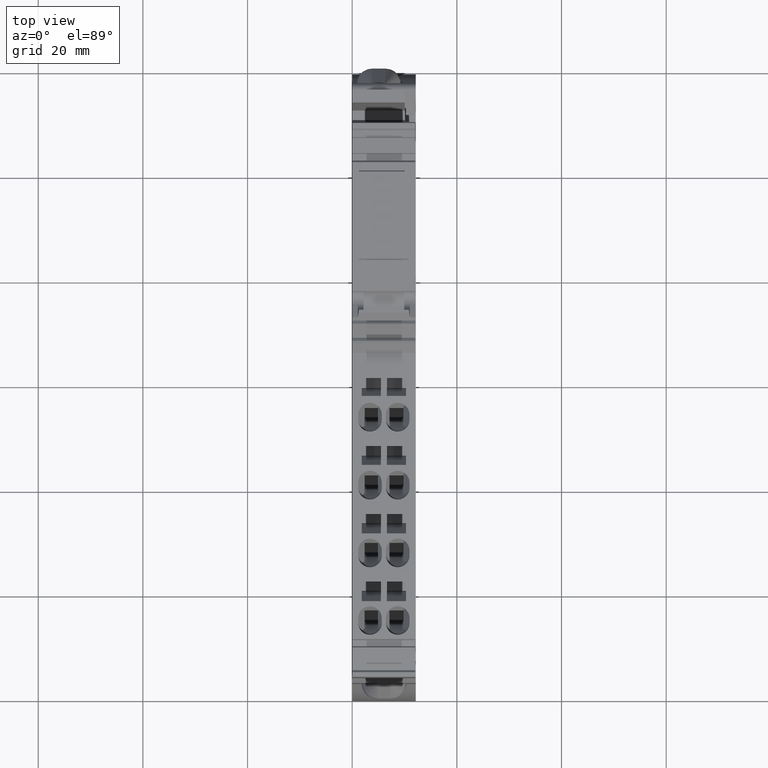
[diagram: clean part render]
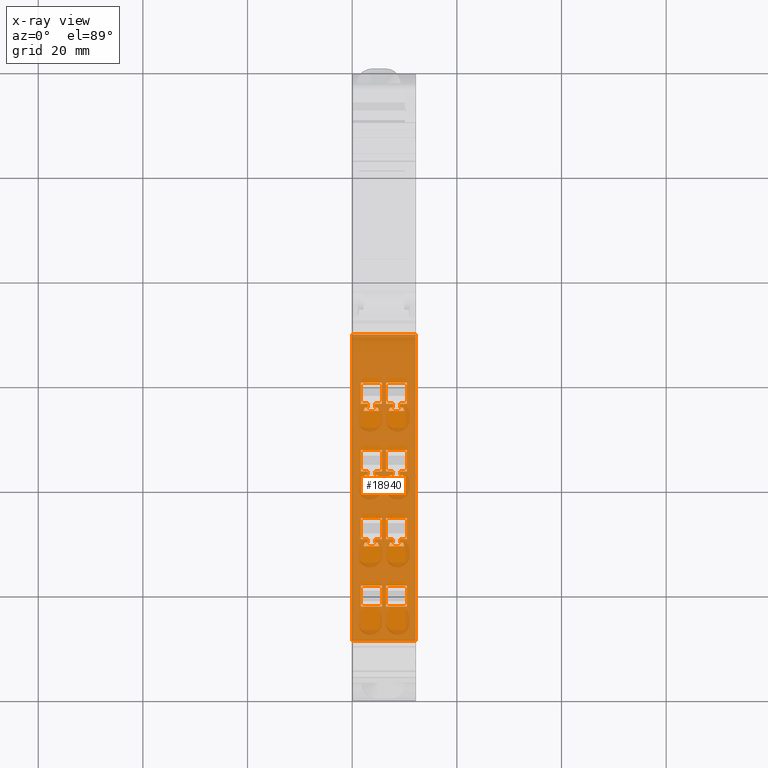
[diagram: x-ray — body ghosted, one internal face saturated and labeled with its STEP entity id]
A machine part, top view, then the same camera in x-ray: the body is ghosted and one INTERNAL B-rep face — a face not visible from any outside direction — is saturated and labeled: STEP entity #18940.
In plain terms, the highlighted planar face has unit normal (0, 0.1305, -0.9914).
Its self-contained STEP definition (entity closure, byte-faithful):
#120=CARTESIAN_POINT('',(245.956559916687,-18.9076132978659,36.45));
#130=VERTEX_POINT('',#120);
#5600=CARTESIAN_POINT('',(187.478620208858,-26.6063801141666,36.45));
#5610=VERTEX_POINT('',#5600);
#5640=CARTESIAN_POINT('',(217.456642799386,-22.6596985673923,36.45));
#5650=DIRECTION('',(0.991444861373811,0.13052619222005,
-1.55470229805303E-45));
#5660=VECTOR('',#5650,1.);
#5670=LINE('',#5640,#5660);
#5680=EDGE_CURVE('',#5610,#130,#5670,.T.);
#8220=CARTESIAN_POINT('',(245.956559916687,-18.9076132978659,24.3));
#8230=VERTEX_POINT('',#8220);
#8260=CARTESIAN_POINT('',(217.456642799386,-22.6596985673923,24.3));
#8270=DIRECTION('',(0.991444861373811,0.13052619222005,
-1.55470229805303E-45));
#8280=VECTOR('',#8270,1.);
#8290=LINE('',#8260,#8280);
#8300=CARTESIAN_POINT('',(187.478620208858,-26.6063801141666,24.3));
#8310=VERTEX_POINT('',#8300);
#8320=EDGE_CURVE('',#8310,#8230,#8290,.T.);
#12170=CARTESIAN_POINT('',(245.956559916687,-18.9076132978659,24.3));
#12180=DIRECTION('',(0.13052619222005,-0.991444861373811,
1.18091363744997E-44));
#12190=DIRECTION('',(0.991444861373811,0.13052619222005,
-1.55470229805303E-45));
#12200=AXIS2_PLACEMENT_3D('',#12170,#12180,#12190);
#12210=PLANE('',#12200);
#12220=CARTESIAN_POINT('',(217.456642799386,-22.6596985673923,
34.6032718878702));
#12230=DIRECTION('',(0.937065302366578,0.123366987459046,
-0.32663313595824));
#12240=VECTOR('',#12230,1.);
#12250=LINE('',#12220,#12240);
#12260=CARTESIAN_POINT('',(218.49881961482,-22.5224933867127,34.24));
#12270=VERTEX_POINT('',#12260);
#12280=CARTESIAN_POINT('',(219.173002120554,-22.4337355760031,34.005));
#12290=VERTEX_POINT('',#12280);
#12300=EDGE_CURVE('',#12270,#12290,#12250,.T.);
#12310=ORIENTED_EDGE('',*,*,#12300,.F.);
#12320=CARTESIAN_POINT('',(219.173002120554,-22.4337355760031,24.3));
#12330=DIRECTION('',(-1.81498105661143E-19,-2.38946789176702E-20,-1.));
#12340=VECTOR('',#12330,1.);
#12350=LINE('',#12320,#12340);
#12360=CARTESIAN_POINT('',(219.173002120554,-22.4337355760031,33.4));
#12370=VERTEX_POINT('',#12360);
#12380=EDGE_CURVE('',#12290,#12370,#12350,.T.);
#12390=ORIENTED_EDGE('',*,*,#12380,.F.);
#12400=CARTESIAN_POINT('',(217.456642799386,-22.6596985673923,33.4));
#12410=DIRECTION('',(0.991444861373811,0.13052619222005,
-1.55470229805303E-45));
#12420=VECTOR('',#12410,1.);
#12430=LINE('',#12400,#12420);
#12440=CARTESIAN_POINT('',(219.862056299209,-22.3430198724101,33.4));
#12450=VERTEX_POINT('',#12440);
#12460=EDGE_CURVE('',#12370,#12450,#12430,.T.);
#12470=ORIENTED_EDGE('',*,*,#12460,.F.);
#12480=CARTESIAN_POINT('',(219.862056299209,-22.3430198724101,24.3));
#12490=DIRECTION('',(1.81498105661143E-19,2.38946789176702E-20,1.));
#12500=VECTOR('',#12490,1.);
#12510=LINE('',#12480,#12500);
#12520=CARTESIAN_POINT('',(219.862056299209,-22.3430198724101,34.75));
#12530=VERTEX_POINT('',#12520);
#12540=EDGE_CURVE('',#12450,#12530,#12510,.T.);
#12550=ORIENTED_EDGE('',*,*,#12540,.F.);
#12560=CARTESIAN_POINT('',(217.456642799386,-22.6596985673923,34.75));
#12570=DIRECTION('',(0.991444861373811,0.13052619222005,
-1.55470229805303E-45));
#12580=VECTOR('',#12570,1.);
#12590=LINE('',#12560,#12580);
#12600=CARTESIAN_POINT('',(223.888026889554,-21.8129907889778,34.75));
#12610=VERTEX_POINT('',#12600);
#12620=EDGE_CURVE('',#12530,#12610,#12590,.T.);
#12630=ORIENTED_EDGE('',*,*,#12620,.F.);
#12640=CARTESIAN_POINT('',(223.888026889554,-21.8129907889778,24.3));
#12650=DIRECTION('',(-1.81498105661143E-19,-2.38946789176702E-20,-1.));
#12660=VECTOR('',#12650,1.);
#12670=LINE('',#12640,#12660);
#12680=CARTESIAN_POINT('',(223.888026889554,-21.8129907889778,30.75));
#12690=VERTEX_POINT('',#12680);
#12700=EDGE_CURVE('',#12610,#12690,#12670,.T.);
#12710=ORIENTED_EDGE('',*,*,#12700,.F.);
#12720=CARTESIAN_POINT('',(217.456642799386,-22.6596985673923,30.75));
#12730=DIRECTION('',(-0.991444861373811,-0.13052619222005,
1.55470229805303E-45));
#12740=VECTOR('',#12730,1.);
#12750=LINE('',#12720,#12740);
#12760=CARTESIAN_POINT('',(219.862056299209,-22.3430198724101,30.75));
#12770=VERTEX_POINT('',#12760);
#12780=EDGE_CURVE('',#12690,#12770,#12750,.T.);
#12790=ORIENTED_EDGE('',*,*,#12780,.F.);
#12800=CARTESIAN_POINT('',(219.862056299209,-22.3430198724101,24.3));
#12810=DIRECTION('',(1.81498105661143E-19,2.38946789176702E-20,1.));
#12820=VECTOR('',#12810,1.);
#12830=LINE('',#12800,#12820);
#12840=CARTESIAN_POINT('',(219.862056299209,-22.3430198724101,32.1));
#12850=VERTEX_POINT('',#12840);
#12860=EDGE_CURVE('',#12770,#12850,#12830,.T.);
#12870=ORIENTED_EDGE('',*,*,#12860,.F.);
#12880=CARTESIAN_POINT('',(217.456642799386,-22.6596985673923,32.1));
#12890=DIRECTION('',(-0.991444861373811,-0.13052619222005,
1.55470229805303E-45));
#12900=VECTOR('',#12890,1.);
#12910=LINE('',#12880,#12900);
#12920=CARTESIAN_POINT('',(219.173002120554,-22.4337355760031,32.1));
#12930=VERTEX_POINT('',#12920);
#12940=EDGE_CURVE('',#12850,#12930,#12910,.T.);
#12950=ORIENTED_EDGE('',*,*,#12940,.F.);
#12960=CARTESIAN_POINT('',(219.173002120554,-22.4337355760031,24.3));
#12970=DIRECTION('',(-1.81498105661143E-19,-2.38946789176702E-20,-1.));
#12980=VECTOR('',#12970,1.);
#12990=LINE('',#12960,#12980);
#13000=CARTESIAN_POINT('',(219.173002120554,-22.4337355760031,31.495));
#13010=VERTEX_POINT('',#13000);
#13020=EDGE_CURVE('',#12930,#13010,#12990,.T.);
#13030=ORIENTED_EDGE('',*,*,#13020,.F.);
#13040=CARTESIAN_POINT('',(217.456642799386,-22.6596985673923,
30.8967281121298));
#13050=DIRECTION('',(-0.937065302366578,-0.123366987459046,
-0.32663313595824));
#13060=VECTOR('',#13050,1.);
#13070=LINE('',#13040,#13060);
#13080=CARTESIAN_POINT('',(218.49881961482,-22.5224933867127,31.26));
#13090=VERTEX_POINT('',#13080);
#13100=EDGE_CURVE('',#13010,#13090,#13070,.T.);
#13110=ORIENTED_EDGE('',*,*,#13100,.F.);
#13120=CARTESIAN_POINT('',(218.49881961482,-22.5224933867127,24.3));
#13130=DIRECTION('',(1.81498105661143E-19,2.38946789176702E-20,1.));
#13140=VECTOR('',#13130,1.);
#13150=LINE('',#13120,#13140);
#13160=EDGE_CURVE('',#13090,#12270,#13150,.T.);
#13170=ORIENTED_EDGE('',*,*,#13160,.F.);
#13180=EDGE_LOOP('',(#13170,#13110,#13030,#12950,#12870,#12790,#12710,
#12630,#12550,#12470,#12390,#12310));
#13190=FACE_BOUND('',#13180,.T.);
#13200=CARTESIAN_POINT('',(217.456642799386,-22.6596985673923,25.95));
#13210=DIRECTION('',(-0.991444861373811,-0.13052619222005,
1.55470229805303E-45));
#13220=VECTOR('',#13210,1.);
#13230=LINE('',#13200,#13220);
#13240=CARTESIAN_POINT('',(198.110460493835,-25.2066717866991,25.95));
#13250=VERTEX_POINT('',#13240);
#13260=CARTESIAN_POINT('',(194.08448990349,-25.7367008701314,25.95));
#13270=VERTEX_POINT('',#13260);
#13280=EDGE_CURVE('',#13250,#13270,#13230,.T.);
#13290=ORIENTED_EDGE('',*,*,#13280,.F.);
#13300=CARTESIAN_POINT('',(194.08448990349,-25.7367008701314,24.3));
#13310=DIRECTION('',(1.81498105661143E-19,2.38946789176702E-20,1.));
#13320=VECTOR('',#13310,1.);
#13330=LINE('',#13300,#13320);
#13340=CARTESIAN_POINT('',(194.08448990349,-25.7367008701314,29.95));
#13350=VERTEX_POINT('',#13340);
#13360=EDGE_CURVE('',#13270,#13350,#13330,.T.);
#13370=ORIENTED_EDGE('',*,*,#13360,.F.);
#13380=CARTESIAN_POINT('',(217.456642799386,-22.6596985673923,29.95));
#13390=DIRECTION('',(0.991444861373811,0.13052619222005,
-1.55470229805303E-45));
#13400=VECTOR('',#13390,1.);
#13410=LINE('',#13380,#13400);
#13420=CARTESIAN_POINT('',(198.110460493835,-25.2066717866991,29.95));
#13430=VERTEX_POINT('',#13420);
#13440=EDGE_CURVE('',#13350,#13430,#13410,.T.);
#13450=ORIENTED_EDGE('',*,*,#13440,.F.);
#13460=CARTESIAN_POINT('',(198.110460493835,-25.2066717866991,24.3));
#13470=DIRECTION('',(-1.81498105661143E-19,-2.38946789176702E-20,-1.));
#13480=VECTOR('',#13470,1.);
#13490=LINE('',#13460,#13480);
#13500=EDGE_CURVE('',#13430,#13250,#13490,.T.);
#13510=ORIENTED_EDGE('',*,*,#13500,.F.);
#13520=EDGE_LOOP('',(#13510,#13450,#13370,#13290));
#13530=FACE_BOUND('',#13520,.T.);
#13540=CARTESIAN_POINT('',(232.061785318414,-20.7368950771424,24.3));
#13550=DIRECTION('',(-1.81498105661143E-19,-2.38946789176702E-20,-1.));
#13560=VECTOR('',#13550,1.);
#13570=LINE('',#13540,#13560);
#13580=CARTESIAN_POINT('',(232.061785318414,-20.7368950771424,34.005));
#13590=VERTEX_POINT('',#13580);
#13600=CARTESIAN_POINT('',(232.061785318414,-20.7368950771424,33.4));
#13610=VERTEX_POINT('',#13600);
#13620=EDGE_CURVE('',#13590,#13610,#13570,.T.);
#13630=ORIENTED_EDGE('',*,*,#13620,.F.);
#13640=CARTESIAN_POINT('',(217.456642799386,-22.6596985673923,33.4));
#13650=DIRECTION('',(0.991444861373811,0.13052619222005,
-1.55470229805303E-45));
#13660=VECTOR('',#13650,1.);
#13670=LINE('',#13640,#13660);
#13680=CARTESIAN_POINT('',(232.750839497069,-20.6461793735495,33.4));
#13690=VERTEX_POINT('',#13680);
#13700=EDGE_CURVE('',#13610,#13690,#13670,.T.);
#13710=ORIENTED_EDGE('',*,*,#13700,.F.);
#13720=CARTESIAN_POINT('',(232.750839497069,-20.6461793735495,24.3));
#13730=DIRECTION('',(1.81498105661143E-19,2.38946789176702E-20,1.));
#13740=VECTOR('',#13730,1.);
#13750=LINE('',#13720,#13740);
#13760=CARTESIAN_POINT('',(232.750839497069,-20.6461793735495,34.75));
#13770=VERTEX_POINT('',#13760);
#13780=EDGE_CURVE('',#13690,#13770,#13750,.T.);
#13790=ORIENTED_EDGE('',*,*,#13780,.F.);
#13800=CARTESIAN_POINT('',(217.456642799386,-22.6596985673923,34.75));
#13810=DIRECTION('',(0.991444861373811,0.13052619222005,
-1.55470229805303E-45));
#13820=VECTOR('',#13810,1.);
#13830=LINE('',#13800,#13820);
#13840=CARTESIAN_POINT('',(236.776810087414,-20.1161502901171,34.75));
#13850=VERTEX_POINT('',#13840);
#13860=EDGE_CURVE('',#13770,#13850,#13830,.T.);
#13870=ORIENTED_EDGE('',*,*,#13860,.F.);
#13880=CARTESIAN_POINT('',(236.776810087414,-20.1161502901171,24.3));
#13890=DIRECTION('',(-1.81498105661143E-19,-2.38946789176702E-20,-1.));
#13900=VECTOR('',#13890,1.);
#13910=LINE('',#13880,#13900);
#13920=CARTESIAN_POINT('',(236.776810087414,-20.1161502901171,30.75));
#13930=VERTEX_POINT('',#13920);
#13940=EDGE_CURVE('',#13850,#13930,#13910,.T.);
#13950=ORIENTED_EDGE('',*,*,#13940,.F.);
#13960=CARTESIAN_POINT('',(217.456642799386,-22.6596985673923,30.75));
#13970=DIRECTION('',(-0.991444861373811,-0.13052619222005,
1.55470229805303E-45));
#13980=VECTOR('',#13970,1.);
#13990=LINE('',#13960,#13980);
#14000=CARTESIAN_POINT('',(232.750839497069,-20.6461793735495,30.75));
#14010=VERTEX_POINT('',#14000);
#14020=EDGE_CURVE('',#13930,#14010,#13990,.T.);
#14030=ORIENTED_EDGE('',*,*,#14020,.F.);
#14040=CARTESIAN_POINT('',(232.750839497069,-20.6461793735495,24.3));
#14050=DIRECTION('',(1.81498105661143E-19,2.38946789176702E-20,1.));
#14060=VECTOR('',#14050,1.);
#14070=LINE('',#14040,#14060);
#14080=CARTESIAN_POINT('',(232.750839497069,-20.6461793735495,32.1));
#14090=VERTEX_POINT('',#14080);
#14100=EDGE_CURVE('',#14010,#14090,#14070,.T.);
#14110=ORIENTED_EDGE('',*,*,#14100,.F.);
#14120=CARTESIAN_POINT('',(217.456642799386,-22.6596985673923,32.1));
#14130=DIRECTION('',(-0.991444861373811,-0.13052619222005,
1.55470229805303E-45));
#14140=VECTOR('',#14130,1.);
#14150=LINE('',#14120,#14140);
#14160=CARTESIAN_POINT('',(232.061785318414,-20.7368950771424,32.1));
#14170=VERTEX_POINT('',#14160);
#14180=EDGE_CURVE('',#14090,#14170,#14150,.T.);
#14190=ORIENTED_EDGE('',*,*,#14180,.F.);
#14200=CARTESIAN_POINT('',(232.061785318414,-20.7368950771424,24.3));
#14210=DIRECTION('',(-1.81498105661143E-19,-2.38946789176702E-20,-1.));
#14220=VECTOR('',#14210,1.);
#14230=LINE('',#14200,#14220);
#14240=CARTESIAN_POINT('',(232.061785318414,-20.7368950771424,31.495));
#14250=VERTEX_POINT('',#14240);
#14260=EDGE_CURVE('',#14170,#14250,#14230,.T.);
#14270=ORIENTED_EDGE('',*,*,#14260,.F.);
#14280=CARTESIAN_POINT('',(217.456642799386,-22.6596985673923,
26.4040810533063));
#14290=DIRECTION('',(-0.937065302366578,-0.123366987459046,
-0.32663313595824));
#14300=VECTOR('',#14290,1.);
#14310=LINE('',#14280,#14300);
#14320=CARTESIAN_POINT('',(231.38760281268,-20.8256528878521,31.26));
#14330=VERTEX_POINT('',#14320);
#14340=EDGE_CURVE('',#14250,#14330,#14310,.T.);
#14350=ORIENTED_EDGE('',*,*,#14340,.F.);
#14360=CARTESIAN_POINT('',(231.38760281268,-20.8256528878521,24.3));
#14370=DIRECTION('',(1.81498105661143E-19,2.38946789176702E-20,1.));
#14380=VECTOR('',#14370,1.);
#14390=LINE('',#14360,#14380);
#14400=CARTESIAN_POINT('',(231.38760281268,-20.8256528878521,34.24));
#14410=VERTEX_POINT('',#14400);
#14420=EDGE_CURVE('',#14330,#14410,#14390,.T.);
#14430=ORIENTED_EDGE('',*,*,#14420,.F.);
#14440=CARTESIAN_POINT('',(217.456642799386,-22.6596985673923,
39.0959189466937));
#14450=DIRECTION('',(0.937065302366578,0.123366987459046,
-0.32663313595824));
#14460=VECTOR('',#14450,1.);
#14470=LINE('',#14440,#14460);
#14480=EDGE_CURVE('',#14410,#13590,#14470,.T.);
#14490=ORIENTED_EDGE('',*,*,#14480,.F.);
#14500=EDGE_LOOP('',(#14490,#14430,#14350,#14270,#14190,#14110,#14030,
#13950,#13870,#13790,#13710,#13630));
#14510=FACE_BOUND('',#14500,.T.);
#14520=CARTESIAN_POINT('',(198.110460493835,-25.2066717866991,24.3));
#14530=DIRECTION('',(-1.81498105661143E-19,-2.38946789176702E-20,-1.));
#14540=VECTOR('',#14530,1.);
#14550=LINE('',#14520,#14540);
#14560=CARTESIAN_POINT('',(198.110460493835,-25.2066717866991,34.75));
#14570=VERTEX_POINT('',#14560);
#14580=CARTESIAN_POINT('',(198.110460493835,-25.2066717866991,30.75));
#14590=VERTEX_POINT('',#14580);
#14600=EDGE_CURVE('',#14570,#14590,#14550,.T.);
#14610=ORIENTED_EDGE('',*,*,#14600,.F.);
#14620=CARTESIAN_POINT('',(217.456642799386,-22.6596985673923,30.75));
#14630=DIRECTION('',(-0.991444861373811,-0.13052619222005,
1.55470229805303E-45));
#14640=VECTOR('',#14630,1.);
#14650=LINE('',#14620,#14640);
#14660=CARTESIAN_POINT('',(194.08448990349,-25.7367008701314,30.75));
#14670=VERTEX_POINT('',#14660);
#14680=EDGE_CURVE('',#14590,#14670,#14650,.T.);
#14690=ORIENTED_EDGE('',*,*,#14680,.F.);
#14700=CARTESIAN_POINT('',(194.08448990349,-25.7367008701314,24.3));
#14710=DIRECTION('',(1.81498105661143E-19,2.38946789176702E-20,1.));
#14720=VECTOR('',#14710,1.);
#14730=LINE('',#14700,#14720);
#14740=CARTESIAN_POINT('',(194.08448990349,-25.7367008701314,34.75));
#14750=VERTEX_POINT('',#14740);
#14760=EDGE_CURVE('',#14670,#14750,#14730,.T.);
#14770=ORIENTED_EDGE('',*,*,#14760,.F.);
#14780=CARTESIAN_POINT('',(217.456642799386,-22.6596985673923,34.75));
#14790=DIRECTION('',(0.991444861373811,0.13052619222005,
-1.55470229805303E-45));
#14800=VECTOR('',#14790,1.);
#14810=LINE('',#14780,#14800);
#14820=EDGE_CURVE('',#14750,#14570,#14810,.T.);
#14830=ORIENTED_EDGE('',*,*,#14820,.F.);
#14840=EDGE_LOOP('',(#14830,#14770,#14690,#14610));
#14850=FACE_BOUND('',#14840,.T.);
#14860=CARTESIAN_POINT('',(217.456642799386,-22.6596985673923,29.95));
#14870=DIRECTION('',(0.991444861373811,0.13052619222005,
-1.55470229805303E-45));
#14880=VECTOR('',#14870,1.);
#14890=LINE('',#14860,#14880);
#14900=CARTESIAN_POINT('',(232.750839497069,-20.6461793735495,29.95));
#14910=VERTEX_POINT('',#14900);
#14920=CARTESIAN_POINT('',(236.776810087414,-20.1161502901171,29.95));
#14930=VERTEX_POINT('',#14920);
#14940=EDGE_CURVE('',#14910,#14930,#14890,.T.);
#14950=ORIENTED_EDGE('',*,*,#14940,.F.);
#14960=CARTESIAN_POINT('',(236.776810087414,-20.1161502901171,24.3));
#14970=DIRECTION('',(-1.81498105661143E-19,-2.38946789176702E-20,-1.));
#14980=VECTOR('',#14970,1.);
#14990=LINE('',#14960,#14980);
#15000=CARTESIAN_POINT('',(236.776810087414,-20.1161502901171,25.95));
#15010=VERTEX_POINT('',#15000);
#15020=EDGE_CURVE('',#14930,#15010,#14990,.T.);
#15030=ORIENTED_EDGE('',*,*,#15020,.F.);
#15040=CARTESIAN_POINT('',(217.456642799386,-22.6596985673923,25.95));
#15050=DIRECTION('',(-0.991444861373811,-0.13052619222005,
1.55470229805303E-45));
#15060=VECTOR('',#15050,1.);
#15070=LINE('',#15040,#15060);
#15080=CARTESIAN_POINT('',(232.750839497069,-20.6461793735495,25.95));
#15090=VERTEX_POINT('',#15080);
#15100=EDGE_CURVE('',#15010,#15090,#15070,.T.);
#15110=ORIENTED_EDGE('',*,*,#15100,.F.);
#15120=CARTESIAN_POINT('',(232.750839497069,-20.6461793735495,24.3));
#15130=DIRECTION('',(1.81498105661143E-19,2.38946789176702E-20,1.));
#15140=VECTOR('',#15130,1.);
#15150=LINE('',#15120,#15140);
#15160=CARTESIAN_POINT('',(232.750839497069,-20.6461793735495,27.3));
#15170=VERTEX_POINT('',#15160);
#15180=EDGE_CURVE('',#15090,#15170,#15150,.T.);
#15190=ORIENTED_EDGE('',*,*,#15180,.F.);
#15200=CARTESIAN_POINT('',(217.456642799386,-22.6596985673923,27.3));
#15210=DIRECTION('',(-0.991444861373811,-0.13052619222005,
1.55470229805303E-45));
#15220=VECTOR('',#15210,1.);
#15230=LINE('',#15200,#15220);
#15240=CARTESIAN_POINT('',(232.061785318414,-20.7368950771424,27.3));
#15250=VERTEX_POINT('',#15240);
#15260=EDGE_CURVE('',#15170,#15250,#15230,.T.);
#15270=ORIENTED_EDGE('',*,*,#15260,.F.);
#15280=CARTESIAN_POINT('',(232.061785318414,-20.7368950771424,24.3));
#15290=DIRECTION('',(-1.81498105661143E-19,-2.38946789176702E-20,-1.));
#15300=VECTOR('',#15290,1.);
#15310=LINE('',#15280,#15300);
#15320=CARTESIAN_POINT('',(232.061785318414,-20.7368950771424,26.695));
#15330=VERTEX_POINT('',#15320);
#15340=EDGE_CURVE('',#15250,#15330,#15310,.T.);
#15350=ORIENTED_EDGE('',*,*,#15340,.F.);
#15360=CARTESIAN_POINT('',(217.456642799386,-22.6596985673923,
21.6040810533063));
#15370=DIRECTION('',(-0.937065302366578,-0.123366987459046,
-0.32663313595824));
#15380=VECTOR('',#15370,1.);
#15390=LINE('',#15360,#15380);
#15400=CARTESIAN_POINT('',(231.38760281268,-20.825652887852,26.46));
#15410=VERTEX_POINT('',#15400);
#15420=EDGE_CURVE('',#15330,#15410,#15390,.T.);
#15430=ORIENTED_EDGE('',*,*,#15420,.F.);
#15440=CARTESIAN_POINT('',(231.38760281268,-20.825652887852,24.3));
#15450=DIRECTION('',(1.81498105661143E-19,2.38946789176702E-20,1.));
#15460=VECTOR('',#15450,1.);
#15470=LINE('',#15440,#15460);
#15480=CARTESIAN_POINT('',(231.38760281268,-20.825652887852,29.44));
#15490=VERTEX_POINT('',#15480);
#15500=EDGE_CURVE('',#15410,#15490,#15470,.T.);
#15510=ORIENTED_EDGE('',*,*,#15500,.F.);
#15520=CARTESIAN_POINT('',(217.456642799386,-22.6596985673923,
34.2959189466937));
#15530=DIRECTION('',(0.937065302366578,0.123366987459046,
-0.32663313595824));
#15540=VECTOR('',#15530,1.);
#15550=LINE('',#15520,#15540);
#15560=CARTESIAN_POINT('',(232.061785318414,-20.7368950771424,29.205));
#15570=VERTEX_POINT('',#15560);
#15580=EDGE_CURVE('',#15490,#15570,#15550,.T.);
#15590=ORIENTED_EDGE('',*,*,#15580,.F.);
#15600=CARTESIAN_POINT('',(232.061785318414,-20.7368950771424,24.3));
#15610=DIRECTION('',(-1.81498105661143E-19,-2.38946789176702E-20,-1.));
#15620=VECTOR('',#15610,1.);
#15630=LINE('',#15600,#15620);
#15640=CARTESIAN_POINT('',(232.061785318414,-20.7368950771424,28.6));
#15650=VERTEX_POINT('',#15640);
#15660=EDGE_CURVE('',#15570,#15650,#15630,.T.);
#15670=ORIENTED_EDGE('',*,*,#15660,.F.);
#15680=CARTESIAN_POINT('',(217.456642799386,-22.6596985673923,28.6));
#15690=DIRECTION('',(0.991444861373811,0.13052619222005,
-1.55470229805303E-45));
#15700=VECTOR('',#15690,1.);
#15710=LINE('',#15680,#15700);
#15720=CARTESIAN_POINT('',(232.750839497069,-20.6461793735495,28.6));
#15730=VERTEX_POINT('',#15720);
#15740=EDGE_CURVE('',#15650,#15730,#15710,.T.);
#15750=ORIENTED_EDGE('',*,*,#15740,.F.);
#15760=CARTESIAN_POINT('',(232.750839497069,-20.6461793735495,24.3));
#15770=DIRECTION('',(1.81498105661143E-19,2.38946789176702E-20,1.));
#15780=VECTOR('',#15770,1.);
#15790=LINE('',#15760,#15780);
#15800=EDGE_CURVE('',#15730,#14910,#15790,.T.);
#15810=ORIENTED_EDGE('',*,*,#15800,.F.);
#15820=EDGE_LOOP('',(#15810,#15750,#15670,#15590,#15510,#15430,#15350,
#15270,#15190,#15110,#15030,#14950));
#15830=FACE_BOUND('',#15820,.T.);
#15840=CARTESIAN_POINT('',(219.862056299209,-22.3430198724101,24.3));
#15850=DIRECTION('',(1.81498105661143E-19,2.38946789176702E-20,1.));
#15860=VECTOR('',#15850,1.);
#15870=LINE('',#15840,#15860);
#15880=CARTESIAN_POINT('',(219.862056299209,-22.3430198724101,28.6));
#15890=VERTEX_POINT('',#15880);
#15900=CARTESIAN_POINT('',(219.862056299209,-22.3430198724101,29.95));
#15910=VERTEX_POINT('',#15900);
#15920=EDGE_CURVE('',#15890,#15910,#15870,.T.);
#15930=ORIENTED_EDGE('',*,*,#15920,.F.);
#15940=CARTESIAN_POINT('',(217.456642799386,-22.6596985673923,29.95));
#15950=DIRECTION('',(0.991444861373811,0.13052619222005,
-1.55470229805303E-45));
#15960=VECTOR('',#15950,1.);
#15970=LINE('',#15940,#15960);
#15980=CARTESIAN_POINT('',(223.888026889554,-21.8129907889778,29.95));
#15990=VERTEX_POINT('',#15980);
#16000=EDGE_CURVE('',#15910,#15990,#15970,.T.);
#16010=ORIENTED_EDGE('',*,*,#16000,.F.);
#16020=CARTESIAN_POINT('',(223.888026889554,-21.8129907889778,24.3));
#16030=DIRECTION('',(-1.81498105661143E-19,-2.38946789176702E-20,-1.));
#16040=VECTOR('',#16030,1.);
#16050=LINE('',#16020,#16040);
#16060=CARTESIAN_POINT('',(223.888026889554,-21.8129907889778,25.95));
#16070=VERTEX_POINT('',#16060);
#16080=EDGE_CURVE('',#15990,#16070,#16050,.T.);
#16090=ORIENTED_EDGE('',*,*,#16080,.F.);
#16100=CARTESIAN_POINT('',(217.456642799386,-22.6596985673923,25.95));
#16110=DIRECTION('',(-0.991444861373811,-0.13052619222005,
1.55470229805303E-45));
#16120=VECTOR('',#16110,1.);
#16130=LINE('',#16100,#16120);
#16140=CARTESIAN_POINT('',(219.862056299209,-22.3430198724101,25.95));
#16150=VERTEX_POINT('',#16140);
#16160=EDGE_CURVE('',#16070,#16150,#16130,.T.);
#16170=ORIENTED_EDGE('',*,*,#16160,.F.);
#16180=CARTESIAN_POINT('',(219.862056299209,-22.3430198724101,24.3));
#16190=DIRECTION('',(1.81498105661143E-19,2.38946789176702E-20,1.));
#16200=VECTOR('',#16190,1.);
#16210=LINE('',#16180,#16200);
#16220=CARTESIAN_POINT('',(219.862056299209,-22.3430198724101,27.3));
#16230=VERTEX_POINT('',#16220);
#16240=EDGE_CURVE('',#16150,#16230,#16210,.T.);
#16250=ORIENTED_EDGE('',*,*,#16240,.F.);
#16260=CARTESIAN_POINT('',(217.456642799386,-22.6596985673923,27.3));
#16270=DIRECTION('',(-0.991444861373811,-0.13052619222005,
1.55470229805303E-45));
#16280=VECTOR('',#16270,1.);
#16290=LINE('',#16260,#16280);
#16300=CARTESIAN_POINT('',(219.173002120554,-22.4337355760031,27.3));
#16310=VERTEX_POINT('',#16300);
#16320=EDGE_CURVE('',#16230,#16310,#16290,.T.);
#16330=ORIENTED_EDGE('',*,*,#16320,.F.);
#16340=CARTESIAN_POINT('',(219.173002120554,-22.4337355760031,24.3));
#16350=DIRECTION('',(-1.81498105661143E-19,-2.38946789176702E-20,-1.));
#16360=VECTOR('',#16350,1.);
#16370=LINE('',#16340,#16360);
#16380=CARTESIAN_POINT('',(219.173002120554,-22.4337355760031,26.695));
#16390=VERTEX_POINT('',#16380);
#16400=EDGE_CURVE('',#16310,#16390,#16370,.T.);
#16410=ORIENTED_EDGE('',*,*,#16400,.F.);
#16420=CARTESIAN_POINT('',(217.456642799386,-22.6596985673923,
26.0967281121298));
#16430=DIRECTION('',(-0.937065302366578,-0.123366987459046,
-0.32663313595824));
#16440=VECTOR('',#16430,1.);
#16450=LINE('',#16420,#16440);
#16460=CARTESIAN_POINT('',(218.49881961482,-22.5224933867127,26.46));
#16470=VERTEX_POINT('',#16460);
#16480=EDGE_CURVE('',#16390,#16470,#16450,.T.);
#16490=ORIENTED_EDGE('',*,*,#16480,.F.);
#16500=CARTESIAN_POINT('',(218.49881961482,-22.5224933867127,24.3));
#16510=DIRECTION('',(1.81498105661143E-19,2.38946789176702E-20,1.));
#16520=VECTOR('',#16510,1.);
#16530=LINE('',#16500,#16520);
#16540=CARTESIAN_POINT('',(218.49881961482,-22.5224933867127,29.44));
#16550=VERTEX_POINT('',#16540);
#16560=EDGE_CURVE('',#16470,#16550,#16530,.T.);
#16570=ORIENTED_EDGE('',*,*,#16560,.F.);
#16580=CARTESIAN_POINT('',(217.456642799386,-22.6596985673923,
29.8032718878702));
#16590=DIRECTION('',(0.937065302366578,0.123366987459046,
-0.32663313595824));
#16600=VECTOR('',#16590,1.);
#16610=LINE('',#16580,#16600);
#16620=CARTESIAN_POINT('',(219.173002120554,-22.4337355760031,29.205));
#16630=VERTEX_POINT('',#16620);
#16640=EDGE_CURVE('',#16550,#16630,#16610,.T.);
#16650=ORIENTED_EDGE('',*,*,#16640,.F.);
#16660=CARTESIAN_POINT('',(219.173002120554,-22.4337355760031,24.3));
#16670=DIRECTION('',(-1.81498105661143E-19,-2.38946789176702E-20,-1.));
#16680=VECTOR('',#16670,1.);
#16690=LINE('',#16660,#16680);
#16700=CARTESIAN_POINT('',(219.173002120554,-22.4337355760031,28.6));
#16710=VERTEX_POINT('',#16700);
#16720=EDGE_CURVE('',#16630,#16710,#16690,.T.);
#16730=ORIENTED_EDGE('',*,*,#16720,.F.);
#16740=CARTESIAN_POINT('',(217.456642799386,-22.6596985673923,28.6));
#16750=DIRECTION('',(0.991444861373811,0.13052619222005,
-1.55470229805303E-45));
#16760=VECTOR('',#16750,1.);
#16770=LINE('',#16740,#16760);
#16780=EDGE_CURVE('',#16710,#15890,#16770,.T.);
#16790=ORIENTED_EDGE('',*,*,#16780,.F.);
#16800=EDGE_LOOP('',(#16790,#16730,#16650,#16570,#16490,#16410,#16330,
#16250,#16170,#16090,#16010,#15930));
#16810=FACE_BOUND('',#16800,.T.);
#16820=CARTESIAN_POINT('',(217.456642799386,-22.6596985673923,
30.5893751709533));
#16830=DIRECTION('',(-0.937065302366578,-0.123366987459046,
-0.32663313595824));
#16840=VECTOR('',#16830,1.);
#16850=LINE('',#16820,#16840);
#16860=CARTESIAN_POINT('',(206.284218922695,-24.1305760748637,26.695));
#16870=VERTEX_POINT('',#16860);
#16880=CARTESIAN_POINT('',(205.610036416961,-24.2193338855733,26.46));
#16890=VERTEX_POINT('',#16880);
#16900=EDGE_CURVE('',#16870,#16890,#16850,.T.);
#16910=ORIENTED_EDGE('',*,*,#16900,.F.);
#16920=CARTESIAN_POINT('',(205.610036416961,-24.2193338855733,24.3));
#16930=DIRECTION('',(1.81498105661143E-19,2.38946789176702E-20,1.));
#16940=VECTOR('',#16930,1.);
#16950=LINE('',#16920,#16940);
#16960=CARTESIAN_POINT('',(205.610036416961,-24.2193338855733,29.44));
#16970=VERTEX_POINT('',#16960);
#16980=EDGE_CURVE('',#16890,#16970,#16950,.T.);
#16990=ORIENTED_EDGE('',*,*,#16980,.F.);
#17000=CARTESIAN_POINT('',(217.456642799386,-22.6596985673923,
25.3106248290467));
#17010=DIRECTION('',(0.937065302366578,0.123366987459046,
-0.32663313595824));
#17020=VECTOR('',#17010,1.);
#17030=LINE('',#17000,#17020);
#17040=CARTESIAN_POINT('',(206.284218922695,-24.1305760748637,29.205));
#17050=VERTEX_POINT('',#17040);
#17060=EDGE_CURVE('',#16970,#17050,#17030,.T.);
#17070=ORIENTED_EDGE('',*,*,#17060,.F.);
#17080=CARTESIAN_POINT('',(206.284218922695,-24.1305760748637,24.3));
#17090=DIRECTION('',(-1.81498105661143E-19,-2.38946789176702E-20,-1.));
#17100=VECTOR('',#17090,1.);
#17110=LINE('',#17080,#17100);
#17120=CARTESIAN_POINT('',(206.284218922695,-24.1305760748637,28.6));
#17130=VERTEX_POINT('',#17120);
#17140=EDGE_CURVE('',#17050,#17130,#17110,.T.);
#17150=ORIENTED_EDGE('',*,*,#17140,.F.);
#17160=CARTESIAN_POINT('',(217.456642799386,-22.6596985673923,28.6));
#17170=DIRECTION('',(0.991444861373811,0.13052619222005,
-1.55470229805303E-45));
#17180=VECTOR('',#17170,1.);
#17190=LINE('',#17160,#17180);
#17200=CARTESIAN_POINT('',(206.97327310135,-24.0398603712708,28.6));
#17210=VERTEX_POINT('',#17200);
#17220=EDGE_CURVE('',#17130,#17210,#17190,.T.);
#17230=ORIENTED_EDGE('',*,*,#17220,.F.);
#17240=CARTESIAN_POINT('',(206.97327310135,-24.0398603712708,24.3));
#17250=DIRECTION('',(1.81498105661143E-19,2.38946789176702E-20,1.));
#17260=VECTOR('',#17250,1.);
#17270=LINE('',#17240,#17260);
#17280=CARTESIAN_POINT('',(206.97327310135,-24.0398603712708,29.95));
#17290=VERTEX_POINT('',#17280);
#17300=EDGE_CURVE('',#17210,#17290,#17270,.T.);
#17310=ORIENTED_EDGE('',*,*,#17300,.F.);
#17320=CARTESIAN_POINT('',(217.456642799386,-22.6596985673923,29.95));
#17330=DIRECTION('',(0.991444861373811,0.13052619222005,
-1.55470229805303E-45));
#17340=VECTOR('',#17330,1.);
#17350=LINE('',#17320,#17340);
#17360=CARTESIAN_POINT('',(210.999243691695,-23.5098312878385,29.95));
#17370=VERTEX_POINT('',#17360);
#17380=EDGE_CURVE('',#17290,#17370,#17350,.T.);
#17390=ORIENTED_EDGE('',*,*,#17380,.F.);
#17400=CARTESIAN_POINT('',(210.999243691695,-23.5098312878385,24.3));
#17410=DIRECTION('',(-1.81498105661143E-19,-2.38946789176702E-20,-1.));
#17420=VECTOR('',#17410,1.);
#17430=LINE('',#17400,#17420);
#17440=CARTESIAN_POINT('',(210.999243691695,-23.5098312878385,25.95));
#17450=VERTEX_POINT('',#17440);
#17460=EDGE_CURVE('',#17370,#17450,#17430,.T.);
#17470=ORIENTED_EDGE('',*,*,#17460,.F.);
#17480=CARTESIAN_POINT('',(217.456642799386,-22.6596985673923,25.95));
#17490=DIRECTION('',(-0.991444861373811,-0.13052619222005,
1.55470229805303E-45));
#17500=VECTOR('',#17490,1.);
#17510=LINE('',#17480,#17500);
#17520=CARTESIAN_POINT('',(206.97327310135,-24.0398603712708,25.95));
#17530=VERTEX_POINT('',#17520);
#17540=EDGE_CURVE('',#17450,#17530,#17510,.T.);
#17550=ORIENTED_EDGE('',*,*,#17540,.F.);
#17560=CARTESIAN_POINT('',(206.97327310135,-24.0398603712708,24.3));
#17570=DIRECTION('',(1.81498105661143E-19,2.38946789176702E-20,1.));
#17580=VECTOR('',#17570,1.);
#17590=LINE('',#17560,#17580);
#17600=CARTESIAN_POINT('',(206.97327310135,-24.0398603712708,27.3));
#17610=VERTEX_POINT('',#17600);
#17620=EDGE_CURVE('',#17530,#17610,#17590,.T.);
#17630=ORIENTED_EDGE('',*,*,#17620,.F.);
#17640=CARTESIAN_POINT('',(217.456642799386,-22.6596985673923,27.3));
#17650=DIRECTION('',(-0.991444861373811,-0.13052619222005,
1.55470229805303E-45));
#17660=VECTOR('',#17650,1.);
#17670=LINE('',#17640,#17660);
#17680=CARTESIAN_POINT('',(206.284218922695,-24.1305760748637,27.3));
#17690=VERTEX_POINT('',#17680);
#17700=EDGE_CURVE('',#17610,#17690,#17670,.T.);
#17710=ORIENTED_EDGE('',*,*,#17700,.F.);
#17720=CARTESIAN_POINT('',(206.284218922695,-24.1305760748637,24.3));
#17730=DIRECTION('',(-1.81498105661143E-19,-2.38946789176702E-20,-1.));
#17740=VECTOR('',#17730,1.);
#17750=LINE('',#17720,#17740);
#17760=EDGE_CURVE('',#17690,#16870,#17750,.T.);
#17770=ORIENTED_EDGE('',*,*,#17760,.F.);
#17780=EDGE_LOOP('',(#17770,#17710,#17630,#17550,#17470,#17390,#17310,
#17230,#17150,#17070,#16990,#16910));
#17790=FACE_BOUND('',#17780,.T.);
#17800=CARTESIAN_POINT('',(217.456642799386,-22.6596985673923,34.75));
#17810=DIRECTION('',(0.991444861373811,0.13052619222005,
-1.55470229805303E-45));
#17820=VECTOR('',#17810,1.);
#17830=LINE('',#17800,#17820);
#17840=CARTESIAN_POINT('',(206.97327310135,-24.0398603712708,34.75));
#17850=VERTEX_POINT('',#17840);
#17860=CARTESIAN_POINT('',(210.999243691695,-23.5098312878385,34.75));
#17870=VERTEX_POINT('',#17860);
#17880=EDGE_CURVE('',#17850,#17870,#17830,.T.);
#17890=ORIENTED_EDGE('',*,*,#17880,.F.);
#17900=CARTESIAN_POINT('',(210.999243691695,-23.5098312878385,24.3));
#17910=DIRECTION('',(-1.81498105661143E-19,-2.38946789176702E-20,-1.));
#17920=VECTOR('',#17910,1.);
#17930=LINE('',#17900,#17920);
#17940=CARTESIAN_POINT('',(210.999243691695,-23.5098312878385,30.75));
#17950=VERTEX_POINT('',#17940);
#17960=EDGE_CURVE('',#17870,#17950,#17930,.T.);
#17970=ORIENTED_EDGE('',*,*,#17960,.F.);
#17980=CARTESIAN_POINT('',(217.456642799386,-22.6596985673923,30.75));
#17990=DIRECTION('',(-0.991444861373811,-0.13052619222005,
1.55470229805303E-45));
#18000=VECTOR('',#17990,1.);
#18010=LINE('',#17980,#18000);
#18020=CARTESIAN_POINT('',(206.97327310135,-24.0398603712708,30.75));
#18030=VERTEX_POINT('',#18020);
#18040=EDGE_CURVE('',#17950,#18030,#18010,.T.);
#18050=ORIENTED_EDGE('',*,*,#18040,.F.);
#18060=CARTESIAN_POINT('',(206.97327310135,-24.0398603712708,24.3));
#18070=DIRECTION('',(1.81498105661143E-19,2.38946789176702E-20,1.));
#18080=VECTOR('',#18070,1.);
#18090=LINE('',#18060,#18080);
#18100=CARTESIAN_POINT('',(206.97327310135,-24.0398603712708,32.1));
#18110=VERTEX_POINT('',#18100);
#18120=EDGE_CURVE('',#18030,#18110,#18090,.T.);
#18130=ORIENTED_EDGE('',*,*,#18120,.F.);
#18140=CARTESIAN_POINT('',(217.456642799386,-22.6596985673923,32.1));
#18150=DIRECTION('',(-0.991444861373811,-0.13052619222005,
1.55470229805303E-45));
#18160=VECTOR('',#18150,1.);
#18170=LINE('',#18140,#18160);
#18180=CARTESIAN_POINT('',(206.284218922695,-24.1305760748637,32.1));
#18190=VERTEX_POINT('',#18180);
#18200=EDGE_CURVE('',#18110,#18190,#18170,.T.);
#18210=ORIENTED_EDGE('',*,*,#18200,.F.);
#18220=CARTESIAN_POINT('',(206.284218922695,-24.1305760748637,24.3));
#18230=DIRECTION('',(-1.81498105661143E-19,-2.38946789176702E-20,-1.));
#18240=VECTOR('',#18230,1.);
#18250=LINE('',#18220,#18240);
#18260=CARTESIAN_POINT('',(206.284218922695,-24.1305760748637,31.495));
#18270=VERTEX_POINT('',#18260);
#18280=EDGE_CURVE('',#18190,#18270,#18250,.T.);
#18290=ORIENTED_EDGE('',*,*,#18280,.F.);
#18300=CARTESIAN_POINT('',(217.456642799386,-22.6596985673923,
35.3893751709533));
#18310=DIRECTION('',(-0.937065302366578,-0.123366987459046,
-0.32663313595824));
#18320=VECTOR('',#18310,1.);
#18330=LINE('',#18300,#18320);
#18340=CARTESIAN_POINT('',(205.610036416961,-24.2193338855734,31.26));
#18350=VERTEX_POINT('',#18340);
#18360=EDGE_CURVE('',#18270,#18350,#18330,.T.);
#18370=ORIENTED_EDGE('',*,*,#18360,.F.);
#18380=CARTESIAN_POINT('',(205.610036416961,-24.2193338855733,24.3));
#18390=DIRECTION('',(1.81498105661143E-19,2.38946789176702E-20,1.));
#18400=VECTOR('',#18390,1.);
#18410=LINE('',#18380,#18400);
#18420=CARTESIAN_POINT('',(205.610036416961,-24.2193338855733,34.24));
#18430=VERTEX_POINT('',#18420);
#18440=EDGE_CURVE('',#18350,#18430,#18410,.T.);
#18450=ORIENTED_EDGE('',*,*,#18440,.F.);
#18460=CARTESIAN_POINT('',(217.456642799386,-22.6596985673923,
30.1106248290467));
#18470=DIRECTION('',(0.937065302366578,0.123366987459046,
-0.32663313595824));
#18480=VECTOR('',#18470,1.);
#18490=LINE('',#18460,#18480);
#18500=CARTESIAN_POINT('',(206.284218922695,-24.1305760748637,34.005));
#18510=VERTEX_POINT('',#18500);
#18520=EDGE_CURVE('',#18430,#18510,#18490,.T.);
#18530=ORIENTED_EDGE('',*,*,#18520,.F.);
#18540=CARTESIAN_POINT('',(206.284218922695,-24.1305760748637,24.3));
#18550=DIRECTION('',(-1.81498105661143E-19,-2.38946789176702E-20,-1.));
#18560=VECTOR('',#18550,1.);
#18570=LINE('',#18540,#18560);
#18580=CARTESIAN_POINT('',(206.284218922695,-24.1305760748637,33.4));
#18590=VERTEX_POINT('',#18580);
#18600=EDGE_CURVE('',#18510,#18590,#18570,.T.);
#18610=ORIENTED_EDGE('',*,*,#18600,.F.);
#18620=CARTESIAN_POINT('',(217.456642799386,-22.6596985673923,33.4));
#18630=DIRECTION('',(0.991444861373811,0.13052619222005,
-1.55470229805303E-45));
#18640=VECTOR('',#18630,1.);
#18650=LINE('',#18620,#18640);
#18660=CARTESIAN_POINT('',(206.97327310135,-24.0398603712708,33.4));
#18670=VERTEX_POINT('',#18660);
#18680=EDGE_CURVE('',#18590,#18670,#18650,.T.);
#18690=ORIENTED_EDGE('',*,*,#18680,.F.);
#18700=CARTESIAN_POINT('',(206.97327310135,-24.0398603712708,24.3));
#18710=DIRECTION('',(1.81498105661143E-19,2.38946789176702E-20,1.));
#18720=VECTOR('',#18710,1.);
#18730=LINE('',#18700,#18720);
#18740=EDGE_CURVE('',#18670,#17850,#18730,.T.);
#18750=ORIENTED_EDGE('',*,*,#18740,.F.);
#18760=EDGE_LOOP('',(#18750,#18690,#18610,#18530,#18450,#18370,#18290,
#18210,#18130,#18050,#17970,#17890));
#18770=FACE_BOUND('',#18760,.T.);
#18780=ORIENTED_EDGE('',*,*,#8320,.F.);
#18790=CARTESIAN_POINT('',(245.956559916687,-18.9076132978659,24.3));
#18800=DIRECTION('',(0.,1.19110369467609E-44,1.));
#18810=VECTOR('',#18800,1.);
#18820=LINE('',#18790,#18810);
#18830=EDGE_CURVE('',#8230,#130,#18820,.T.);
#18840=ORIENTED_EDGE('',*,*,#18830,.F.);
#18850=ORIENTED_EDGE('',*,*,#5680,.T.);
#18860=CARTESIAN_POINT('',(187.478620208858,-26.6063801141666,24.3));
#18870=DIRECTION('',(0.,1.19110369467609E-44,1.));
#18880=VECTOR('',#18870,1.);
#18890=LINE('',#18860,#18880);
#18900=EDGE_CURVE('',#8310,#5610,#18890,.T.);
#18910=ORIENTED_EDGE('',*,*,#18900,.T.);
#18920=EDGE_LOOP('',(#18910,#18850,#18840,#18780));
#18930=FACE_OUTER_BOUND('',#18920,.T.);
#18940=ADVANCED_FACE('',(#13190,#13530,#14510,#14850,#15830,#16810,
#17790,#18770,#18930),#12210,.F.);